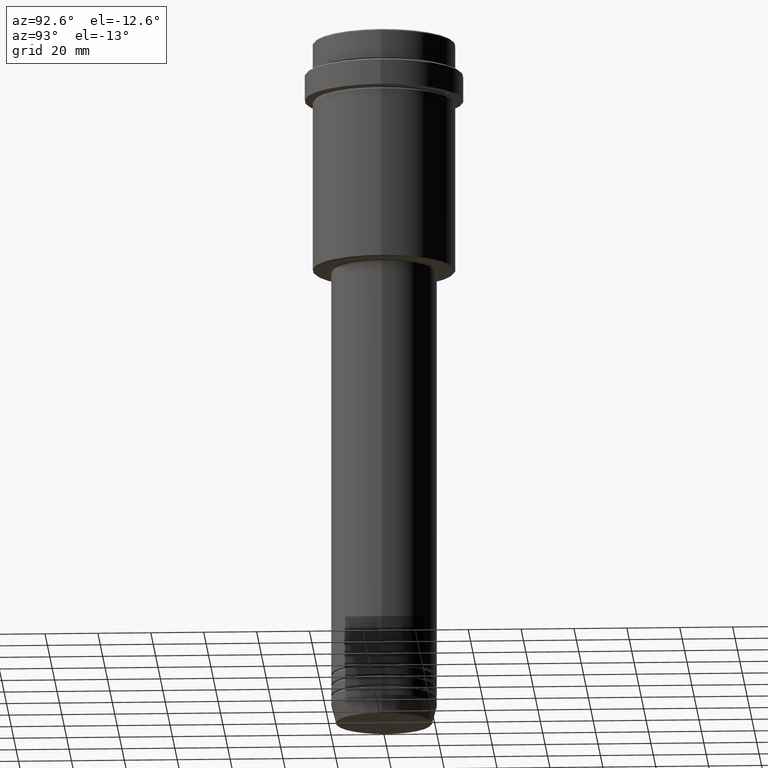
[diagram: clean part render]
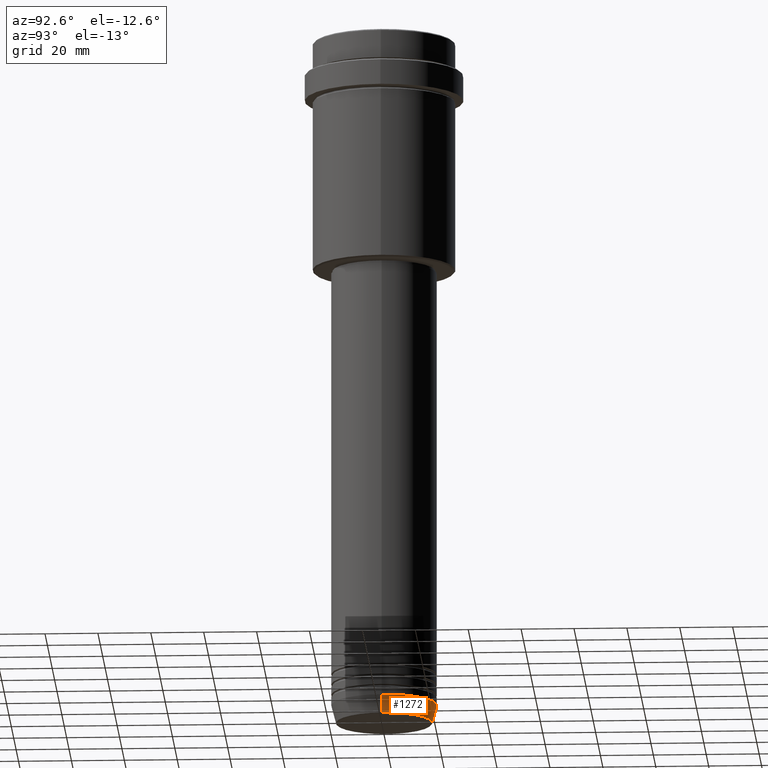
[diagram: same view with one face highlighted and labeled with its STEP entity id]
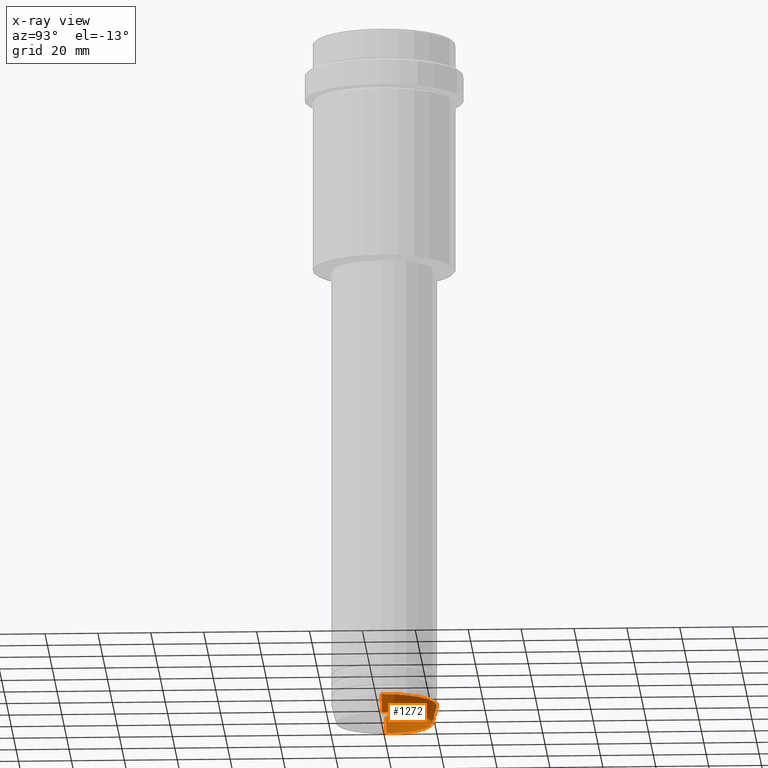
[diagram: x-ray of the same camera — body ghosted, the highlighted face saturated]
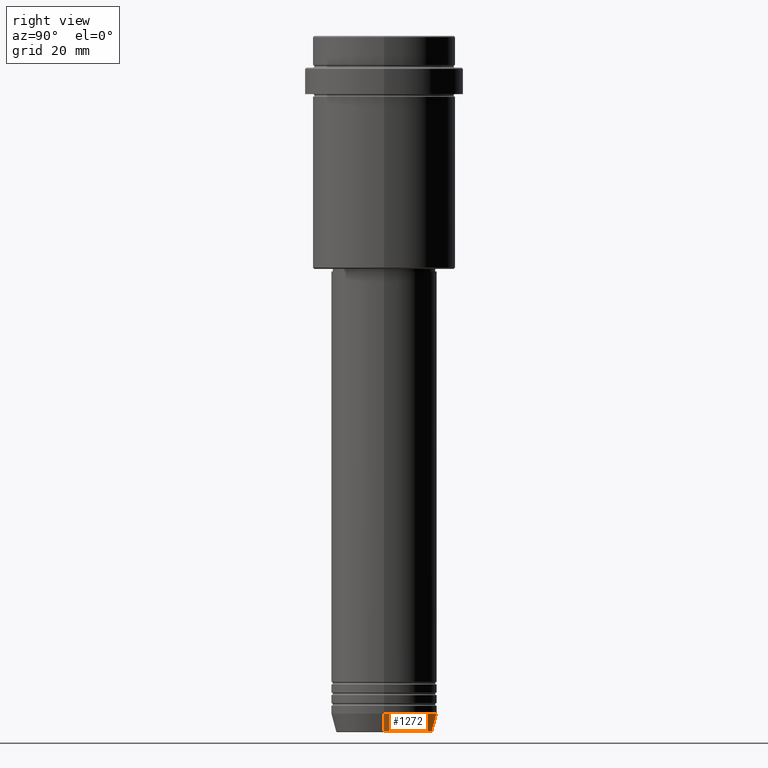
[diagram: same view with one face highlighted and labeled with its STEP entity id]
A machine part, auxiliary view. The second image highlights one B-rep face of the part: STEP entity #1272.
The next image is the same camera in x-ray: the body ghosted, the highlighted face saturated — about 2% of this face is hidden behind the body in this view.
A second angle (right view) of the same face is appended — the face is thin or edge-on in the first view.
In plain terms, the highlighted conical surface has half-angle 15 deg.
Its self-contained STEP definition (entity closure, byte-faithful):
#3 = CARTESIAN_POINT ( 'NONE',  ( 0.000000000000000000, 0.000000000000000000, -256.0000000000000000 ) ) ;
#30 = DIRECTION ( 'NONE',  ( 1.000000000000000000, 0.000000000000000000, 0.000000000000000000 ) ) ;
#37 = AXIS2_PLACEMENT_3D ( 'NONE', #3, #441, #872 ) ;
#40 = DIRECTION ( 'NONE',  ( -0.000000000000000000, -0.000000000000000000, 1.000000000000000000 ) ) ;
#74 = CARTESIAN_POINT ( 'NONE',  ( 0.000000000000000000, 0.000000000000000000, -262.6294095225512706 ) ) ;
#80 = DIRECTION ( 'NONE',  ( -0.000000000000000000, -0.000000000000000000, 1.000000000000000000 ) ) ;
#106 = DIRECTION ( 'NONE',  ( -0.2588190451025213501, 3.169619151431772337E-17, 0.9659258262890680902 ) ) ;
#135 = ORIENTED_EDGE ( 'NONE', *, *, #693, .F. ) ;
#189 = EDGE_CURVE ( 'NONE', #1233, #734, #586, .T. ) ;
#211 = CARTESIAN_POINT ( 'NONE',  ( -20.00000000000000000, 2.449293598294706513E-15, -256.0000000000000000 ) ) ;
#261 = VERTEX_POINT ( 'NONE', #1190 ) ;
#289 = AXIS2_PLACEMENT_3D ( 'NONE', #1005, #40, #30 ) ;
#377 = EDGE_CURVE ( 'NONE', #734, #458, #758, .T. ) ;
#383 = VECTOR ( 'NONE', #1269, 1000.000000000000000 ) ;
#441 = DIRECTION ( 'NONE',  ( -0.000000000000000000, -0.000000000000000000, 1.000000000000000000 ) ) ;
#458 = VERTEX_POINT ( 'NONE', #930 ) ;
#558 = CARTESIAN_POINT ( 'NONE',  ( 18.22365507213718772, 0.000000000000000000, -262.6294095225512706 ) ) ;
#586 = CIRCLE ( 'NONE', #854, 18.22365507213718772 ) ;
#650 = ORIENTED_EDGE ( 'NONE', *, *, #189, .T. ) ;
#693 = EDGE_CURVE ( 'NONE', #1233, #261, #937, .T. ) ;
#734 = VERTEX_POINT ( 'NONE', #1101 ) ;
#758 = LINE ( 'NONE', #211, #1381 ) ;
#854 = AXIS2_PLACEMENT_3D ( 'NONE', #74, #80, #1378 ) ;
#872 = DIRECTION ( 'NONE',  ( 1.000000000000000000, 0.000000000000000000, 0.000000000000000000 ) ) ;
#930 = CARTESIAN_POINT ( 'NONE',  ( -20.00000000000000000, 2.449293598294706513E-15, -256.0000000000000000 ) ) ;
#937 = LINE ( 'NONE', #1395, #383 ) ;
#962 = ORIENTED_EDGE ( 'NONE', *, *, #377, .T. ) ;
#969 = EDGE_CURVE ( 'NONE', #261, #458, #1226, .T. ) ;
#976 = EDGE_LOOP ( 'NONE', ( #650, #962, #1051, #135 ) ) ;
#1005 = CARTESIAN_POINT ( 'NONE',  ( 0.000000000000000000, 0.000000000000000000, -256.0000000000000000 ) ) ;
#1051 = ORIENTED_EDGE ( 'NONE', *, *, #969, .F. ) ;
#1086 = CONICAL_SURFACE ( 'NONE', #37, 20.00000000000000000, 0.2617993877991500740 ) ;
#1101 = CARTESIAN_POINT ( 'NONE',  ( -18.22365507213718772, 2.340523841790264718E-15, -262.6294095225512706 ) ) ;
#1190 = CARTESIAN_POINT ( 'NONE',  ( 20.00000000000000000, 0.000000000000000000, -256.0000000000000000 ) ) ;
#1198 = FACE_OUTER_BOUND ( 'NONE', #976, .T. ) ;
#1226 = CIRCLE ( 'NONE', #289, 20.00000000000000000 ) ;
#1233 = VERTEX_POINT ( 'NONE', #558 ) ;
#1269 = DIRECTION ( 'NONE',  ( 0.2588190451025213501, 0.000000000000000000, 0.9659258262890680902 ) ) ;
#1272 = ADVANCED_FACE ( 'NONE', ( #1198 ), #1086, .T. ) ;
#1378 = DIRECTION ( 'NONE',  ( 1.000000000000000000, 0.000000000000000000, 0.000000000000000000 ) ) ;
#1381 = VECTOR ( 'NONE', #106, 1000.000000000000000 ) ;
#1395 = CARTESIAN_POINT ( 'NONE',  ( 20.00000000000000000, 0.000000000000000000, -256.0000000000000000 ) ) ;